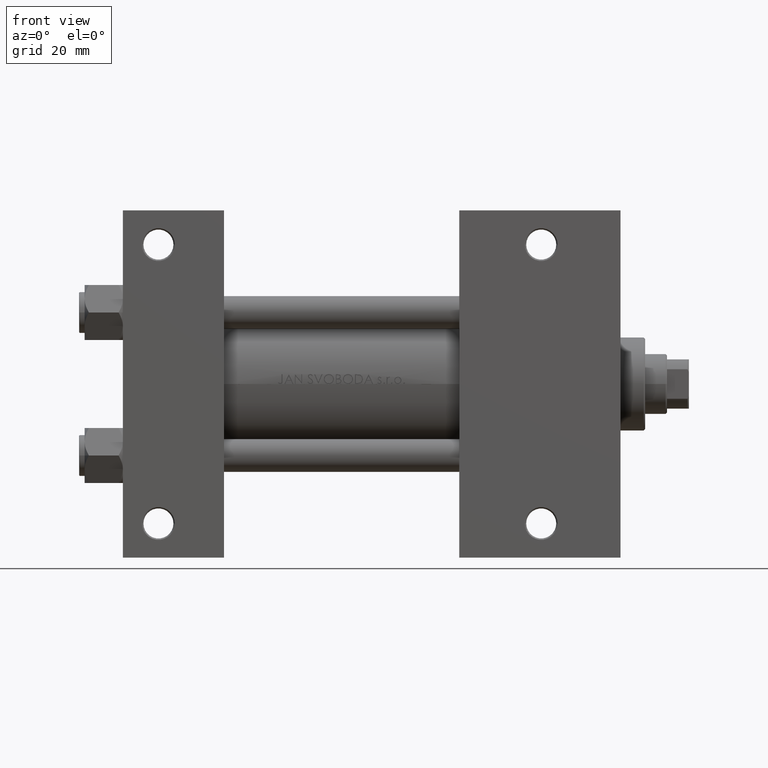
[diagram: clean part render]
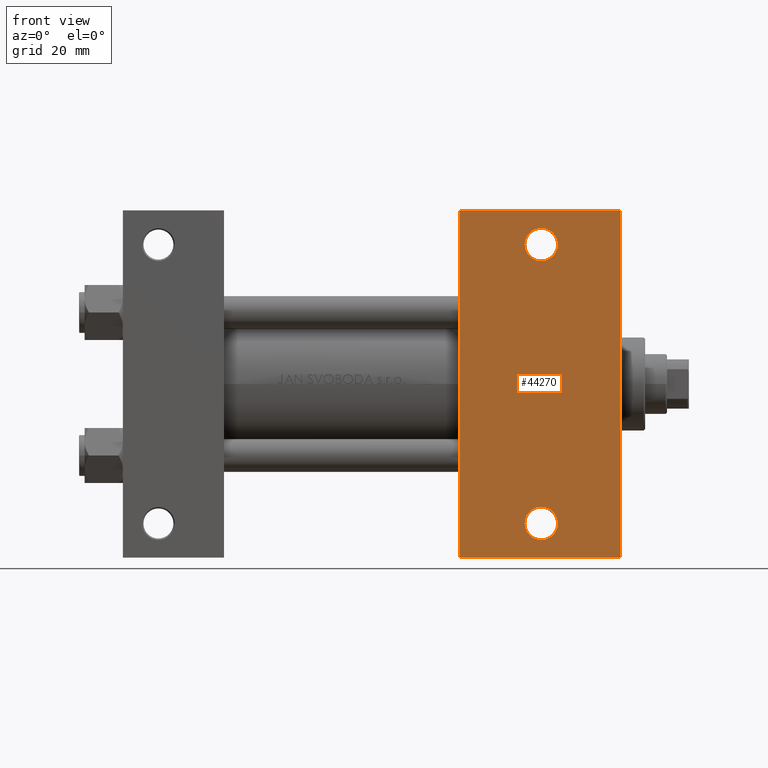
[diagram: same view with one face highlighted and labeled with its STEP entity id]
A machine part, front view. The second image highlights one B-rep face of the part: STEP entity #44270.
In plain terms, the highlighted planar face has unit normal (0, -1, 0).
Its self-contained STEP definition (entity closure, byte-faithful):
#585 = CIRCLE ( 'NONE', #44326, 5.999499999999990507 ) ;
#2625 = CARTESIAN_POINT ( 'NONE',  ( 182.0000000000000284, 63.50000000000000000, -37.50000000000000000 ) ) ;
#3540 = LINE ( 'NONE', #29424, #20319 ) ;
#3853 = DIRECTION ( 'NONE',  ( 1.000000000000000000, 0.000000000000000000, 0.000000000000000000 ) ) ;
#3903 = EDGE_CURVE ( 'NONE', #30782, #45918, #23347, .T. ) ;
#4314 = CARTESIAN_POINT ( 'NONE',  ( 153.0000000000000284, -50.99999999999999289, -37.50000000000000000 ) ) ;
#4978 = FACE_OUTER_BOUND ( 'NONE', #25790, .T. ) ;
#5441 = ORIENTED_EDGE ( 'NONE', *, *, #41030, .F. ) ;
#6802 = DIRECTION ( 'NONE',  ( 0.000000000000000000, -1.000000000000000000, 0.000000000000000000 ) ) ;
#7346 = LINE ( 'NONE', #11579, #21615 ) ;
#10849 = ORIENTED_EDGE ( 'NONE', *, *, #3903, .T. ) ;
#10871 = LINE ( 'NONE', #17598, #48205 ) ;
#10998 = CIRCLE ( 'NONE', #34004, 5.999499999999990507 ) ;
#11579 = CARTESIAN_POINT ( 'NONE',  ( 123.0000000000000000, 63.50000000000000000, -37.50000000000000000 ) ) ;
#12158 = DIRECTION ( 'NONE',  ( -1.000000000000000000, 4.704334850106594808E-16, -0.000000000000000000 ) ) ;
#12540 = DIRECTION ( 'NONE',  ( -1.000000000000000000, 0.000000000000000000, 0.000000000000000000 ) ) ;
#12715 = CARTESIAN_POINT ( 'NONE',  ( 182.0000000000000000, 37.50000000000000000, -37.50000000000000000 ) ) ;
#12856 = ORIENTED_EDGE ( 'NONE', *, *, #26357, .T. ) ;
#15293 = AXIS2_PLACEMENT_3D ( 'NONE', #35390, #23696, #35130 ) ;
#15520 = CIRCLE ( 'NONE', #35369, 5.999499999999990507 ) ;
#16093 = DIRECTION ( 'NONE',  ( -0.000000000000000000, -0.000000000000000000, 1.000000000000000000 ) ) ;
#16449 = DIRECTION ( 'NONE',  ( 0.000000000000000000, 0.000000000000000000, -1.000000000000000000 ) ) ;
#17598 = CARTESIAN_POINT ( 'NONE',  ( 123.0000000000000000, 37.50000000000000000, -37.50000000000000000 ) ) ;
#17995 = EDGE_LOOP ( 'NONE', ( #39268, #32496 ) ) ;
#18476 = CARTESIAN_POINT ( 'NONE',  ( 158.9995000000000118, -50.99999999999999289, -37.50000000000000000 ) ) ;
#19513 = DIRECTION ( 'NONE',  ( -0.000000000000000000, -0.000000000000000000, 1.000000000000000000 ) ) ;
#19623 = EDGE_CURVE ( 'NONE', #33609, #22963, #15520, .T. ) ;
#19645 = VECTOR ( 'NONE', #12158, 1000.000000000000000 ) ;
#20076 = DIRECTION ( 'NONE',  ( -1.000000000000000000, 0.000000000000000000, 0.000000000000000000 ) ) ;
#20319 = VECTOR ( 'NONE', #6802, 1000.000000000000000 ) ;
#20676 = EDGE_LOOP ( 'NONE', ( #27528, #31763 ) ) ;
#20756 = EDGE_CURVE ( 'NONE', #26304, #30782, #3540, .T. ) ;
#20935 = CARTESIAN_POINT ( 'NONE',  ( 147.0005000000000450, 50.99999999999999289, -37.50000000000000000 ) ) ;
#21524 = ORIENTED_EDGE ( 'NONE', *, *, #20756, .T. ) ;
#21615 = VECTOR ( 'NONE', #3853, 1000.000000000000000 ) ;
#22617 = CARTESIAN_POINT ( 'NONE',  ( 153.0000000000000284, 50.99999999999999289, -37.50000000000000000 ) ) ;
#22963 = VERTEX_POINT ( 'NONE', #25423 ) ;
#23347 = LINE ( 'NONE', #30320, #19645 ) ;
#23696 = DIRECTION ( 'NONE',  ( -0.000000000000000000, -0.000000000000000000, 1.000000000000000000 ) ) ;
#24138 = PLANE ( 'NONE',  #45926 ) ;
#25423 = CARTESIAN_POINT ( 'NONE',  ( 158.9995000000000118, 50.99999999999999289, -37.50000000000000000 ) ) ;
#25540 = DIRECTION ( 'NONE',  ( 0.000000000000000000, -1.000000000000000000, 0.000000000000000000 ) ) ;
#25790 = EDGE_LOOP ( 'NONE', ( #5441, #12856, #21524, #10849 ) ) ;
#26304 = VERTEX_POINT ( 'NONE', #2625 ) ;
#26357 = EDGE_CURVE ( 'NONE', #38658, #26304, #7346, .T. ) ;
#26592 = DIRECTION ( 'NONE',  ( -1.000000000000000000, 0.000000000000000000, 0.000000000000000000 ) ) ;
#26864 = CARTESIAN_POINT ( 'NONE',  ( 123.0000000000000000, 63.50000000000000000, -37.50000000000000000 ) ) ;
#27528 = ORIENTED_EDGE ( 'NONE', *, *, #19623, .T. ) ;
#27620 = EDGE_CURVE ( 'NONE', #37308, #46595, #36761, .T. ) ;
#27873 = DIRECTION ( 'NONE',  ( -1.000000000000000000, 0.000000000000000000, -0.000000000000000000 ) ) ;
#29424 = CARTESIAN_POINT ( 'NONE',  ( 182.0000000000000000, 37.50000000000000000, -37.50000000000000000 ) ) ;
#29511 = CARTESIAN_POINT ( 'NONE',  ( 147.0005000000000450, -50.99999999999999289, -37.50000000000000000 ) ) ;
#30320 = CARTESIAN_POINT ( 'NONE',  ( 122.9999999999999858, -63.50000000000000000, -37.50000000000000000 ) ) ;
#30782 = VERTEX_POINT ( 'NONE', #47286 ) ;
#31510 = CARTESIAN_POINT ( 'NONE',  ( 153.0000000000000284, 50.99999999999999289, -37.50000000000000000 ) ) ;
#31763 = ORIENTED_EDGE ( 'NONE', *, *, #44367, .T. ) ;
#32496 = ORIENTED_EDGE ( 'NONE', *, *, #27620, .T. ) ;
#33609 = VERTEX_POINT ( 'NONE', #20935 ) ;
#34004 = AXIS2_PLACEMENT_3D ( 'NONE', #4314, #19513, #12540 ) ;
#35130 = DIRECTION ( 'NONE',  ( -1.000000000000000000, 0.000000000000000000, 0.000000000000000000 ) ) ;
#35369 = AXIS2_PLACEMENT_3D ( 'NONE', #31510, #16093, #20076 ) ;
#35390 = CARTESIAN_POINT ( 'NONE',  ( 153.0000000000000284, -50.99999999999999289, -37.50000000000000000 ) ) ;
#36761 = CIRCLE ( 'NONE', #15293, 5.999499999999990507 ) ;
#36941 = CARTESIAN_POINT ( 'NONE',  ( 122.9999999999999858, -63.50000000000000000, -37.50000000000000000 ) ) ;
#37308 = VERTEX_POINT ( 'NONE', #18476 ) ;
#37820 = DIRECTION ( 'NONE',  ( -0.000000000000000000, -0.000000000000000000, 1.000000000000000000 ) ) ;
#38658 = VERTEX_POINT ( 'NONE', #26864 ) ;
#39092 = FACE_BOUND ( 'NONE', #17995, .T. ) ;
#39268 = ORIENTED_EDGE ( 'NONE', *, *, #44981, .T. ) ;
#41030 = EDGE_CURVE ( 'NONE', #38658, #45918, #10871, .T. ) ;
#43070 = FACE_BOUND ( 'NONE', #20676, .T. ) ;
#44270 = ADVANCED_FACE ( 'NONE', ( #43070, #39092, #4978 ), #24138, .T. ) ;
#44326 = AXIS2_PLACEMENT_3D ( 'NONE', #22617, #37820, #26592 ) ;
#44367 = EDGE_CURVE ( 'NONE', #22963, #33609, #585, .T. ) ;
#44981 = EDGE_CURVE ( 'NONE', #46595, #37308, #10998, .T. ) ;
#45918 = VERTEX_POINT ( 'NONE', #36941 ) ;
#45926 = AXIS2_PLACEMENT_3D ( 'NONE', #12715, #16449, #27873 ) ;
#46595 = VERTEX_POINT ( 'NONE', #29511 ) ;
#47286 = CARTESIAN_POINT ( 'NONE',  ( 182.0000000000000000, -63.50000000000002842, -37.50000000000000000 ) ) ;
#48205 = VECTOR ( 'NONE', #25540, 1000.000000000000000 ) ;